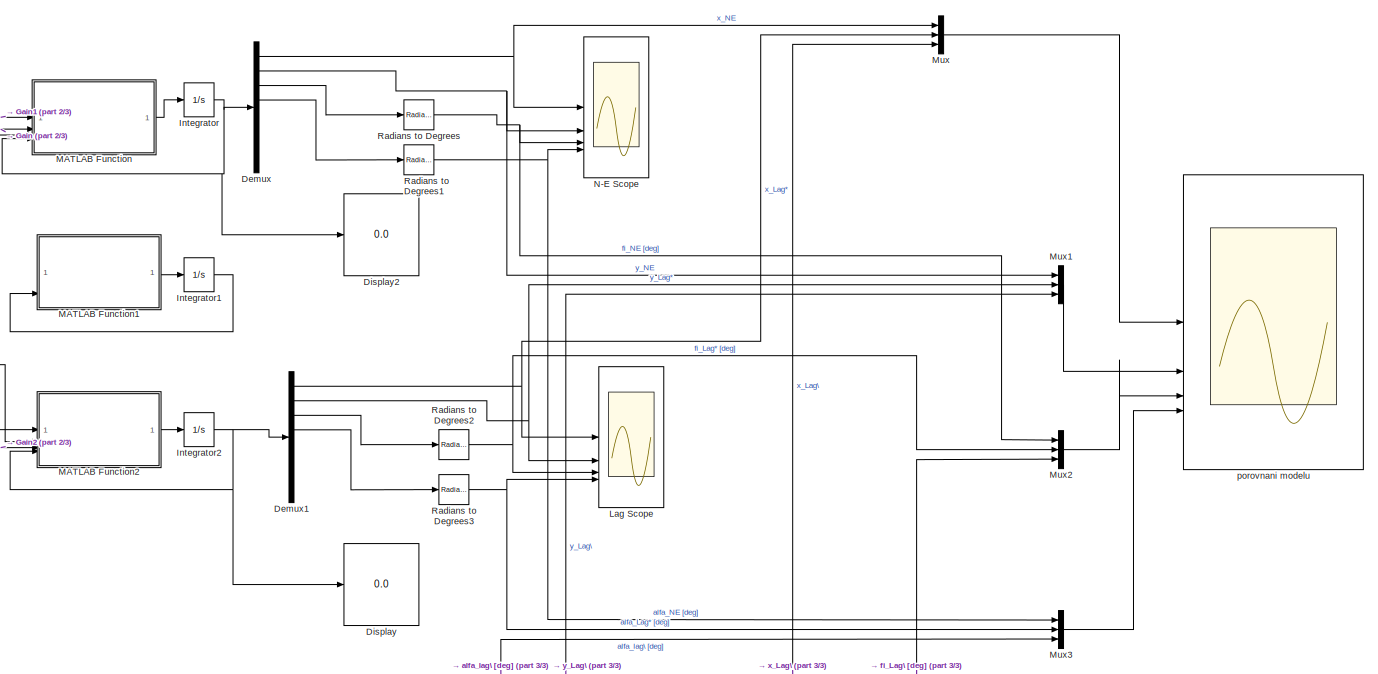
[diagram: root canvas - part 1/3, top right region]
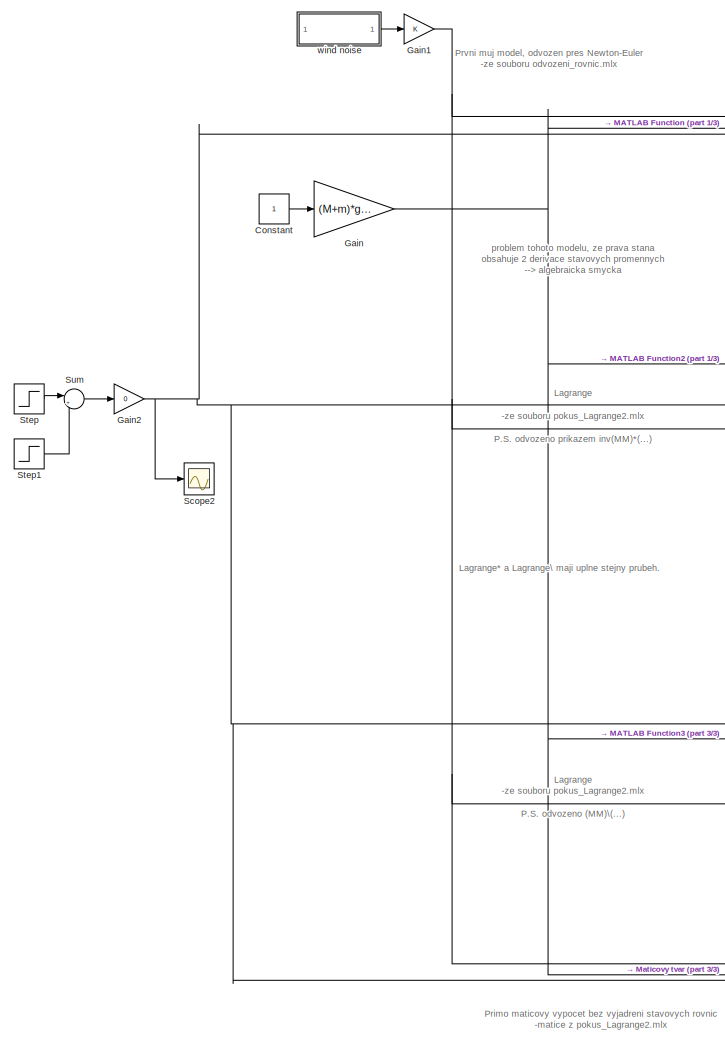
[diagram: root canvas - part 2/3, left side, full height]
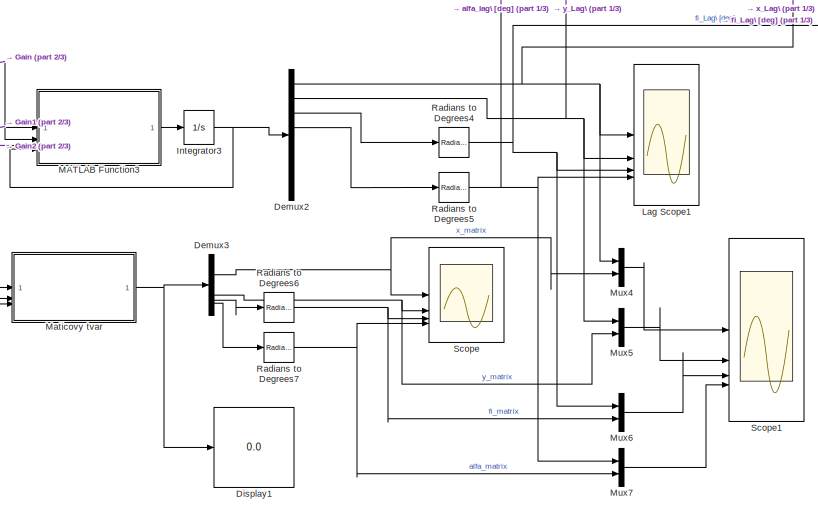
[diagram: root canvas - part 3/3, bottom center region]
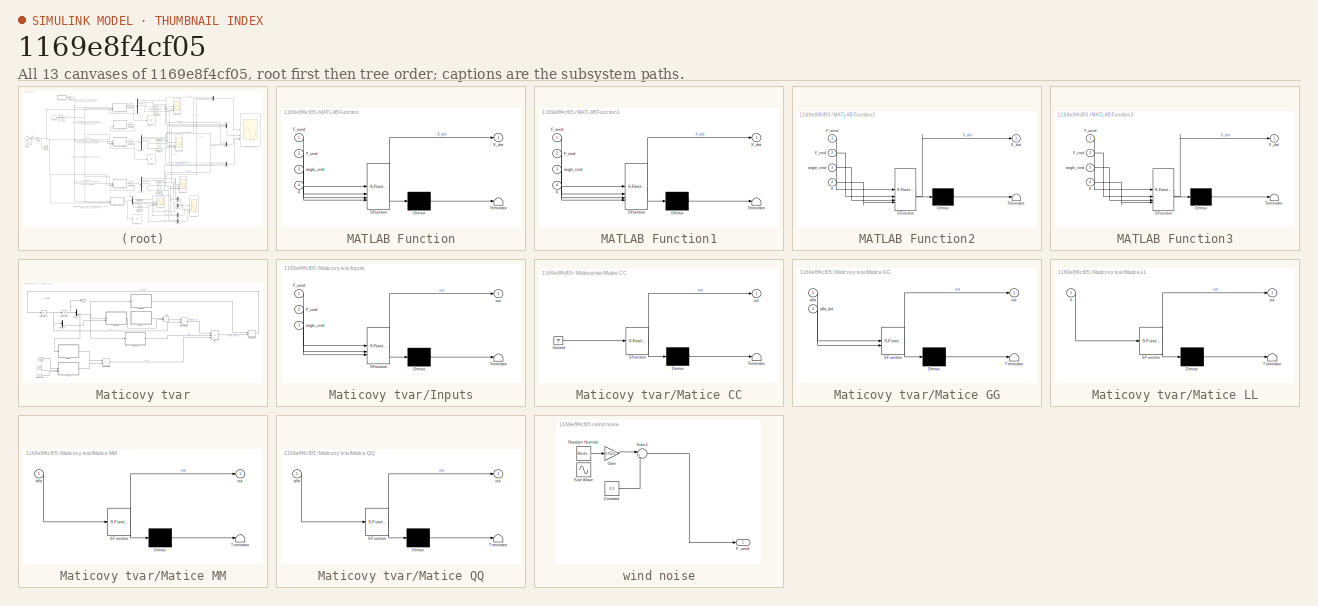
[diagram: thumbnail index - all 13 canvases of the model, root first then tree order]
MODEL slx_1169e8f4cf05
KIND model
CONFIG AbsTol = auto
CONFIG EnableMultiTasking = off
CONFIG FixedStep = 1e-3
CONFIG MaxStep = auto
CONFIG MinStep = auto
CONFIG RelTol = 1e-3
CONFIG SampleTimeConstraint = Unconstrained
CONFIG SolverName = ode4
CONFIG StartTime = 0.0
CONFIG StopTime = 10
BLOCK [Constant] Constant
BLOCK [Demux] Demux
  Outputs = 8
BLOCK [Demux] Demux1
  Outputs = 8
BLOCK [Demux] Demux2
  Outputs = 8
BLOCK [Demux] Demux3
BLOCK [Display] Display
  Decimation = 1
BLOCK [Display] Display1
  Decimation = 1
BLOCK [Display] Display2
  Decimation = 1
BLOCK [Gain] Gain
  Gain = (M+m)*g/1.8
BLOCK [Gain] Gain1
BLOCK [Gain] Gain2
  Gain = 0
BLOCK [Integrator] Integrator
  IgnoreLimit = on
  InitialCondition = [0;0;0;0;0;0;0;0]
  LowerSaturationLimit = [-inf; -inf; -inf; -pi; -inf; -inf; -inf; -inf]
  UpperSaturationLimit = [inf; inf; inf; pi; inf; inf; inf; inf]
BLOCK [Integrator] Integrator1
  Commented = on
  IgnoreLimit = on
  InitialCondition = [0;0;0;0;0;0;0;0]
  LowerSaturationLimit = [-inf; -inf; -inf; -pi; -inf; -inf; -inf; -inf]
  UpperSaturationLimit = [inf; inf; inf; pi; inf; inf; inf; inf]
BLOCK [Integrator] Integrator2
  IgnoreLimit = on
  InitialCondition = [0;0;0;0;0;0;0;0]
  LowerSaturationLimit = [-inf; -inf; -inf; -pi; -inf; -inf; -inf; -inf]
  UpperSaturationLimit = [inf; inf; inf; pi; inf; inf; inf; inf]
BLOCK [Integrator] Integrator3
  IgnoreLimit = on
  InitialCondition = [0;0;0;0;0;0;0;0]
  LowerSaturationLimit = [-inf; -inf; -inf; -pi; -inf; -inf; -inf; -inf]
  UpperSaturationLimit = [inf; inf; inf; pi; inf; inf; inf; inf]
BLOCK [Scope] Lag Scope
  Floating = off
  NumInputPorts = 4
  ScopeSpecificationString = Simulink.scopes.TimeScopeBlockCfg('CurrentConfiguration', extmgr.ConfigurationSet(extmgr.Configuration('Core','General UI',true),extmgr.Configuration('Core','Source UI',true),extmgr.Configuration('Sources','WiredSimulink',true,'DataLoggingVariableName','ScopeData1'),extmgr.Configuration('Visuals','Time Domain',true,'SerializedDisplays',{struct('MinYLimReal','-1.24191','MaxYLimReal','11.1772','YLab...<+3528ch>
BLOCK [Scope] Lag Scope1
  Floating = off
  NumInputPorts = 4
  ScopeSpecificationString = Simulink.scopes.TimeScopeBlockCfg('CurrentConfiguration', extmgr.ConfigurationSet(extmgr.Configuration('Core','General UI',true),extmgr.Configuration('Core','Source UI',true),extmgr.Configuration('Sources','WiredSimulink',true,'DataLoggingVariableName','ScopeData1'),extmgr.Configuration('Visuals','Time Domain',true,'SerializedDisplays',{struct('MinYLimReal','-1.242','MaxYLimReal','11.17804','YLabe...<+3528ch>
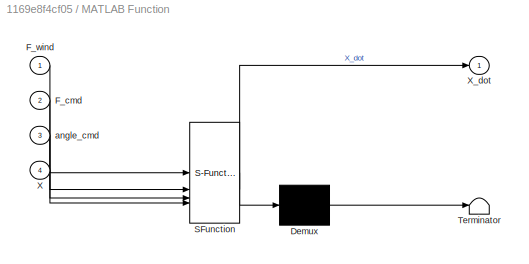
BLOCK [SubSystem] MATLAB Function
  ErrorFcn = Stateflow.Translate.translate
  LibrarySourceBlock = simulink/User-Defined\nFunctions/MATLAB Function
  PermitHierarchicalResolution = ExplicitOnly
  SFBlockType = MATLAB Function
  TreatAsAtomicUnit = on
BLOCK [Demux] MATLAB Function/ Demux 
  Outputs = 1
BLOCK [S-Function] MATLAB Function/ SFunction 
  EnableBusSupport = on
  FunctionName = sf_sfun
  Parameters = Ikv,Ip,L,M,d,g,k,kp,m
  PortCounts = [4 2]
  SFcnIsStateOwnerBlock = off
  SFunctionDeploymentMode = off
  Tag = Stateflow S-Function 2
BLOCK [Terminator] MATLAB Function/ Terminator 
BLOCK [Inport] MATLAB Function/F_cmd
  Port = 2
BLOCK [Inport] MATLAB Function/F_wind
BLOCK [Inport] MATLAB Function/X
  Port = 4
BLOCK [Outport] MATLAB Function/X_dot
BLOCK [Inport] MATLAB Function/angle_cmd
  Port = 3
BLOCK [SubSystem] MATLAB Function1
  Commented = on
  ErrorFcn = Stateflow.Translate.translate
  LibrarySourceBlock = simulink/User-Defined\nFunctions/MATLAB Function
  PermitHierarchicalResolution = ExplicitOnly
  SFBlockType = MATLAB Function
  TreatAsAtomicUnit = on
BLOCK [Demux] MATLAB Function1/ Demux 
  Outputs = 1
BLOCK [S-Function] MATLAB Function1/ SFunction 
  EnableBusSupport = on
  FunctionName = sf_sfun
  Parameters = Ikv,Ip,L,M,d,g,k,kp,m
  PortCounts = [4 2]
  SFcnIsStateOwnerBlock = off
  SFunctionDeploymentMode = off
  Tag = Stateflow S-Function 1
BLOCK [Terminator] MATLAB Function1/ Terminator 
BLOCK [Inport] MATLAB Function1/F_cmd
  Port = 2
BLOCK [Inport] MATLAB Function1/F_wind
BLOCK [Inport] MATLAB Function1/X
  Port = 4
BLOCK [Outport] MATLAB Function1/X_dot
BLOCK [Inport] MATLAB Function1/angle_cmd
  Port = 3
BLOCK [SubSystem] MATLAB Function2
  ErrorFcn = Stateflow.Translate.translate
  LibrarySourceBlock = simulink/User-Defined\nFunctions/MATLAB Function
  PermitHierarchicalResolution = ExplicitOnly
  SFBlockType = MATLAB Function
  TreatAsAtomicUnit = on
BLOCK [Demux] MATLAB Function2/ Demux 
  Outputs = 1
BLOCK [S-Function] MATLAB Function2/ SFunction 
  EnableBusSupport = on
  FunctionName = sf_sfun
  Parameters = Ikv,Ip,L,M,c_alfa,c_fi,c_x,c_y,d,g,k,kp,m
  PortCounts = [4 2]
  SFcnIsStateOwnerBlock = off
  SFunctionDeploymentMode = off
  Tag = Stateflow S-Function 3
BLOCK [Terminator] MATLAB Function2/ Terminator 
BLOCK [Inport] MATLAB Function2/F_cmd
  Port = 2
BLOCK [Inport] MATLAB Function2/F_wind
BLOCK [Inport] MATLAB Function2/X
  Port = 4
BLOCK [Outport] MATLAB Function2/X_dot
BLOCK [Inport] MATLAB Function2/angle_cmd
  Port = 3
BLOCK [SubSystem] MATLAB Function3
  ErrorFcn = Stateflow.Translate.translate
  LibrarySourceBlock = simulink/User-Defined\nFunctions/MATLAB Function
  PermitHierarchicalResolution = ExplicitOnly
  SFBlockType = MATLAB Function
  TreatAsAtomicUnit = on
BLOCK [Demux] MATLAB Function3/ Demux 
  Outputs = 1
BLOCK [S-Function] MATLAB Function3/ SFunction 
  EnableBusSupport = on
  FunctionName = sf_sfun
  Parameters = Ikv,Ip,L,M,c_alfa,c_fi,c_x,c_y,d,g,k,kp,m
  PortCounts = [4 2]
  SFcnIsStateOwnerBlock = off
  SFunctionDeploymentMode = off
  Tag = Stateflow S-Function 4
BLOCK [Terminator] MATLAB Function3/ Terminator 
BLOCK [Inport] MATLAB Function3/F_cmd
  Port = 2
BLOCK [Inport] MATLAB Function3/F_wind
BLOCK [Inport] MATLAB Function3/X
  Port = 4
BLOCK [Outport] MATLAB Function3/X_dot
BLOCK [Inport] MATLAB Function3/angle_cmd
  Port = 3
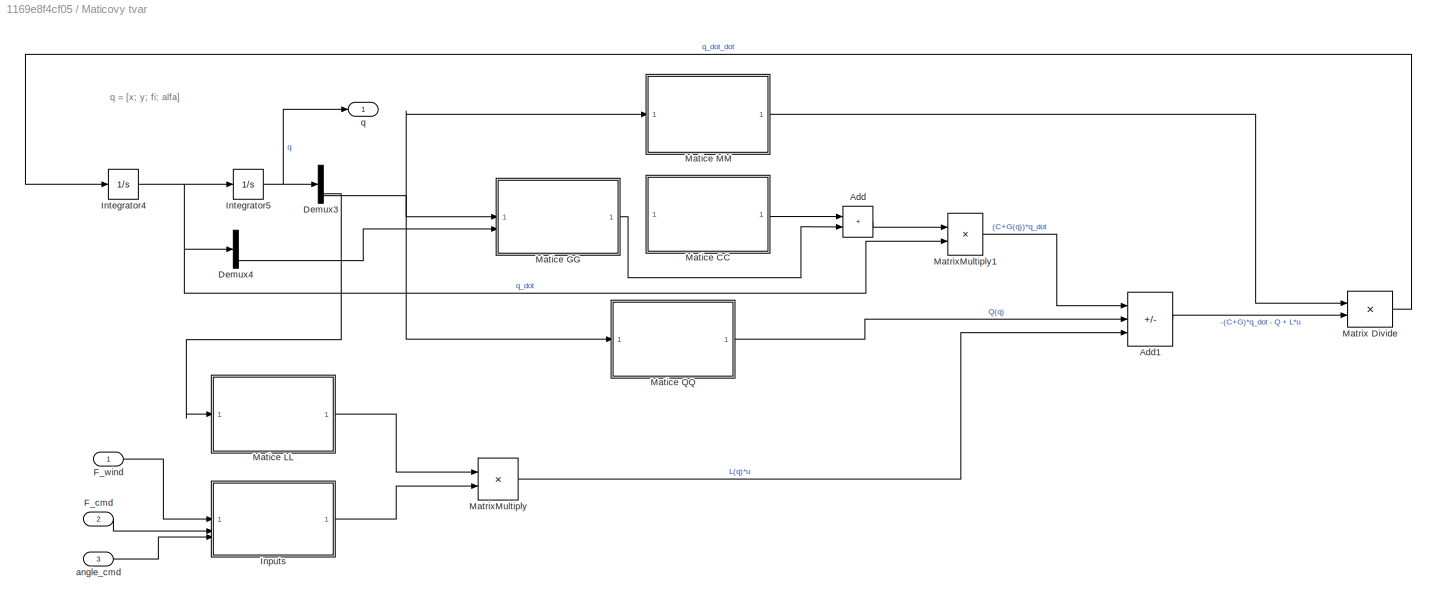
BLOCK [SubSystem] Maticovy tvar
BLOCK [Sum] Maticovy tvar/Add
  IconShape = rectangular
BLOCK [Sum] Maticovy tvar/Add1
  IconShape = rectangular
  Inputs = --+
BLOCK [Demux] Maticovy tvar/Demux3
BLOCK [Demux] Maticovy tvar/Demux4
BLOCK [Inport] Maticovy tvar/F_cmd
  Port = 2
BLOCK [Inport] Maticovy tvar/F_wind
BLOCK [SubSystem] Maticovy tvar/Inputs
  ErrorFcn = Stateflow.Translate.translate
  LibrarySourceBlock = simulink/User-Defined\nFunctions/MATLAB Function
  PermitHierarchicalResolution = ExplicitOnly
  SFBlockType = MATLAB Function
  TreatAsAtomicUnit = on
BLOCK [Demux] Maticovy tvar/Inputs/ Demux 
  Outputs = 1
BLOCK [S-Function] Maticovy tvar/Inputs/ SFunction 
  EnableBusSupport = on
  FunctionName = sf_sfun
  Parameters = L
  PortCounts = [3 2]
  SFcnIsStateOwnerBlock = off
  SFunctionDeploymentMode = off
  Tag = Stateflow S-Function 10
BLOCK [Terminator] Maticovy tvar/Inputs/ Terminator 
BLOCK [Inport] Maticovy tvar/Inputs/F_cmd
  Port = 2
BLOCK [Inport] Maticovy tvar/Inputs/F_wind
BLOCK [Inport] Maticovy tvar/Inputs/angle_cmd
  Port = 3
BLOCK [Outport] Maticovy tvar/Inputs/out
BLOCK [Integrator] Maticovy tvar/Integrator4
  InitialCondition = [0;0;0;0]
BLOCK [Integrator] Maticovy tvar/Integrator5
  InitialCondition = [0;0;0;0]
BLOCK [SubSystem] Maticovy tvar/Matice CC
  ErrorFcn = Stateflow.Translate.translate
  LibrarySourceBlock = simulink/User-Defined\nFunctions/MATLAB Function
  PermitHierarchicalResolution = ExplicitOnly
  SFBlockType = MATLAB Function
  TreatAsAtomicUnit = on
BLOCK [Demux] Maticovy tvar/Matice CC/ Demux 
  Outputs = 1
BLOCK [Ground] Maticovy tvar/Matice CC/ Ground 
BLOCK [S-Function] Maticovy tvar/Matice CC/ SFunction 
  EnableBusSupport = on
  FunctionName = sf_sfun
  Parameters = c_alfa,c_fi,c_x,c_y
  PortCounts = [1 2]
  SFcnIsStateOwnerBlock = off
  SFunctionDeploymentMode = off
  Tag = Stateflow S-Function 6
BLOCK [Terminator] Maticovy tvar/Matice CC/ Terminator 
BLOCK [Outport] Maticovy tvar/Matice CC/out
BLOCK [SubSystem] Maticovy tvar/Matice GG
  ErrorFcn = Stateflow.Translate.translate
  LibrarySourceBlock = simulink/User-Defined\nFunctions/MATLAB Function
  PermitHierarchicalResolution = ExplicitOnly
  SFBlockType = MATLAB Function
  TreatAsAtomicUnit = on
BLOCK [Demux] Maticovy tvar/Matice GG/ Demux 
  Outputs = 1
BLOCK [S-Function] Maticovy tvar/Matice GG/ SFunction 
  EnableBusSupport = on
  FunctionName = sf_sfun
  Parameters = d,m
  PortCounts = [2 2]
  SFcnIsStateOwnerBlock = off
  SFunctionDeploymentMode = off
  Tag = Stateflow S-Function 7
BLOCK [Terminator] Maticovy tvar/Matice GG/ Terminator 
BLOCK [Inport] Maticovy tvar/Matice GG/alfa
BLOCK [Inport] Maticovy tvar/Matice GG/alfa_dot
  Port = 2
BLOCK [Outport] Maticovy tvar/Matice GG/out
BLOCK [SubSystem] Maticovy tvar/Matice LL
  ErrorFcn = Stateflow.Translate.translate
  LibrarySourceBlock = simulink/User-Defined\nFunctions/MATLAB Function
  PermitHierarchicalResolution = ExplicitOnly
  SFBlockType = MATLAB Function
  TreatAsAtomicUnit = on
BLOCK [Demux] Maticovy tvar/Matice LL/ Demux 
  Outputs = 1
BLOCK [S-Function] Maticovy tvar/Matice LL/ SFunction 
  EnableBusSupport = on
  FunctionName = sf_sfun
  PortCounts = [1 2]
  SFcnIsStateOwnerBlock = off
  SFunctionDeploymentMode = off
  Tag = Stateflow S-Function 9
BLOCK [Terminator] Maticovy tvar/Matice LL/ Terminator 
BLOCK [Inport] Maticovy tvar/Matice LL/fi
BLOCK [Outport] Maticovy tvar/Matice LL/out
BLOCK [SubSystem] Maticovy tvar/Matice MM
  ErrorFcn = Stateflow.Translate.translate
  LibrarySourceBlock = simulink/User-Defined\nFunctions/MATLAB Function
  PermitHierarchicalResolution = ExplicitOnly
  SFBlockType = MATLAB Function
  TreatAsAtomicUnit = on
BLOCK [Demux] Maticovy tvar/Matice MM/ Demux 
  Outputs = 1
BLOCK [S-Function] Maticovy tvar/Matice MM/ SFunction 
  EnableBusSupport = on
  FunctionName = sf_sfun
  Parameters = Ikv,M,d,m
  PortCounts = [1 2]
  SFcnIsStateOwnerBlock = off
  SFunctionDeploymentMode = off
  Tag = Stateflow S-Function 5
BLOCK [Terminator] Maticovy tvar/Matice MM/ Terminator 
BLOCK [Inport] Maticovy tvar/Matice MM/alfa
BLOCK [Outport] Maticovy tvar/Matice MM/out
BLOCK [SubSystem] Maticovy tvar/Matice QQ
  ErrorFcn = Stateflow.Translate.translate
  LibrarySourceBlock = simulink/User-Defined\nFunctions/MATLAB Function
  PermitHierarchicalResolution = ExplicitOnly
  SFBlockType = MATLAB Function
  TreatAsAtomicUnit = on
BLOCK [Demux] Maticovy tvar/Matice QQ/ Demux 
  Outputs = 1
BLOCK [S-Function] Maticovy tvar/Matice QQ/ SFunction 
  EnableBusSupport = on
  FunctionName = sf_sfun
  Parameters = M,d,g,m
  PortCounts = [1 2]
  SFcnIsStateOwnerBlock = off
  SFunctionDeploymentMode = off
  Tag = Stateflow S-Function 8
BLOCK [Terminator] Maticovy tvar/Matice QQ/ Terminator 
BLOCK [Inport] Maticovy tvar/Matice QQ/alfa
BLOCK [Outport] Maticovy tvar/Matice QQ/out
BLOCK [Product] Maticovy tvar/Matrix Divide
  Inputs = /*
  Multiplication = Matrix(*)
BLOCK [Product] Maticovy tvar/MatrixMultiply
  Multiplication = Matrix(*)
BLOCK [Product] Maticovy tvar/MatrixMultiply1
  Multiplication = Matrix(*)
BLOCK [Inport] Maticovy tvar/angle_cmd
  Port = 3
BLOCK [Outport] Maticovy tvar/q
BLOCK [Mux] Mux
  DisplayOption = bar
  Inputs = 3
BLOCK [Mux] Mux1
  DisplayOption = bar
  Inputs = 3
BLOCK [Mux] Mux2
  DisplayOption = bar
  Inputs = 3
BLOCK [Mux] Mux3
  DisplayOption = bar
  Inputs = 3
BLOCK [Mux] Mux4
  DisplayOption = bar
  Inputs = 2
BLOCK [Mux] Mux5
  DisplayOption = bar
  Inputs = 2
BLOCK [Mux] Mux6
  DisplayOption = bar
  Inputs = 2
BLOCK [Mux] Mux7
  DisplayOption = bar
  Inputs = 2
BLOCK [Scope] N-E Scope
  Floating = off
  NumInputPorts = 4
  ScopeSpecificationString = Simulink.scopes.TimeScopeBlockCfg('CurrentConfiguration', extmgr.ConfigurationSet(extmgr.Configuration('Core','General UI',true),extmgr.Configuration('Core','Source UI',true),extmgr.Configuration('Sources','WiredSimulink',true),extmgr.Configuration('Visuals','Time Domain',true,'SerializedDisplays',{struct('MinYLimReal','-1.26666','MaxYLimReal','11.39995','YLabelReal','','MinYLimMag','0.00000','Max...<+3460ch>
BLOCK [Reference] Radians to Degrees  REF=simulink_extras/Transformations/Radians
to Degrees
  SourceBlock = simulink_extras/Transformations/Radians\nto Degrees
  SourceType = RadiansToDegrees
BLOCK [Reference] Radians to Degrees1  REF=simulink_extras/Transformations/Radians
to Degrees
  SourceBlock = simulink_extras/Transformations/Radians\nto Degrees
  SourceType = RadiansToDegrees
BLOCK [Reference] Radians to Degrees2  REF=simulink_extras/Transformations/Radians
to Degrees
  SourceBlock = simulink_extras/Transformations/Radians\nto Degrees
  SourceType = RadiansToDegrees
BLOCK [Reference] Radians to Degrees3  REF=simulink_extras/Transformations/Radians
to Degrees
  SourceBlock = simulink_extras/Transformations/Radians\nto Degrees
  SourceType = RadiansToDegrees
BLOCK [Reference] Radians to Degrees4  REF=simulink_extras/Transformations/Radians
to Degrees
  SourceBlock = simulink_extras/Transformations/Radians\nto Degrees
  SourceType = RadiansToDegrees
BLOCK [Reference] Radians to Degrees5  REF=simulink_extras/Transformations/Radians
to Degrees
  SourceBlock = simulink_extras/Transformations/Radians\nto Degrees
  SourceType = RadiansToDegrees
BLOCK [Reference] Radians to Degrees6  REF=simulink_extras/Transformations/Radians
to Degrees
  SourceBlock = simulink_extras/Transformations/Radians\nto Degrees
  SourceType = RadiansToDegrees
BLOCK [Reference] Radians to Degrees7  REF=simulink_extras/Transformations/Radians
to Degrees
  SourceBlock = simulink_extras/Transformations/Radians\nto Degrees
  SourceType = RadiansToDegrees
BLOCK [Scope] Scope
  Floating = off
  NumInputPorts = 4
  ScopeSpecificationString = Simulink.scopes.TimeScopeBlockCfg('CurrentConfiguration', extmgr.ConfigurationSet(extmgr.Configuration('Core','General UI',true),extmgr.Configuration('Core','Source UI',true),extmgr.Configuration('Sources','WiredSimulink',true,'DataLoggingVariableName','ScopeData1'),extmgr.Configuration('Visuals','Time Domain',true,'SerializedDisplays',{struct('MinYLimReal','-213.31952','MaxYLimReal','23.70603','Y...<+3525ch>
BLOCK [Scope] Scope1
  Floating = off
  NumInputPorts = 4
  ScopeSpecificationString = Simulink.scopes.TimeScopeBlockCfg('CurrentConfiguration', extmgr.ConfigurationSet(extmgr.Configuration('Core','General UI',true),extmgr.Configuration('Core','Source UI',true),extmgr.Configuration('Sources','WiredSimulink',true,'DataLoggingVariableName','ScopeData2'),extmgr.Configuration('Visuals','Time Domain',true,'SerializedDisplays',{struct('MinYLimReal','-1.24192','MaxYLimReal','11.17729','YLa...<+3560ch>
BLOCK [Scope] Scope2
  Floating = off
  NumInputPorts = 1
  ScopeSpecificationString = Simulink.scopes.TimeScopeBlockCfg('CurrentConfiguration', extmgr.ConfigurationSet(extmgr.Configuration('Core','General UI',true),extmgr.Configuration('Core','Source UI',true),extmgr.Configuration('Sources','WiredSimulink',true,'DataLoggingVariableName','ScopeData1'),extmgr.Configuration('Visuals','Time Domain',true,'SerializedDisplays',{struct('MinYLimReal','-1.00000','MaxYLimReal','1.00000','YLab...<+1419ch>
BLOCK [Step] Step
  SampleTime = 0
BLOCK [Step] Step1
  After = 0
  Before = 1
  SampleTime = 0
  Time = 2
BLOCK [Sum] Sum
  Inputs = |++
BLOCK [Scope] porovnani modelu
  Floating = off
  NumInputPorts = 4
  ScopeSpecificationString = Simulink.scopes.TimeScopeBlockCfg('CurrentConfiguration', extmgr.ConfigurationSet(extmgr.Configuration('Core','General UI',true),extmgr.Configuration('Core','Source UI',true),extmgr.Configuration('Sources','WiredSimulink',true,'DataLoggingVariableName','ScopeData2'),extmgr.Configuration('Visuals','Time Domain',true,'SerializedDisplays',{struct('MinYLimReal','-1.26416','MaxYLimReal','11.37747','YLa...<+3904ch>
BLOCK [SubSystem] wind noise
BLOCK [Constant] wind noise/Constant
  Value = 0.1
BLOCK [Outport] wind noise/F_wind
BLOCK [Gain] wind noise/Gain
  Gain = 0.05/3
BLOCK [RandomNumber] wind noise/Random Number
  SampleTime = 0.1
BLOCK [Sin] wind noise/Sine Wave
  Amplitude = 0.1
  Frequency = 0.5
  SampleTime = 0
BLOCK [Sum] wind noise/Sum1
  Inputs = |++
ANNOTATION (root): Lagrange -ze souboru pokus_Lagrange2.mlx P.S. odvozeno (MM)\(...)
ANNOTATION (root): Lagrange -ze souboru pokus_Lagrange2.mlx P.S. odvozeno prikazem inv(MM)*(...)
ANNOTATION (root): Lagrange* a Lagrange\ maji uplne stejny prubeh.
ANNOTATION (root): Primo maticovy vypocet bez vyjadreni stavovych rovnic -matice z pokus_Lagrange2.mlx
ANNOTATION (root): Prvni muj model, odvozen pres Newton-Euler -ze souboru odvozeni_rovnic.mlx
ANNOTATION (root): problem tohoto modelu, ze prava stana obsahuje 2 derivace stavovych promennych --> algebraicka smycka
ANNOTATION Maticovy tvar: q = [x; y; fi; alfa]
LINE Constant:1 -> Gain:1
NET Demux1:1 -> Lag Scope:1, Mux:2
NET Demux1:2 -> Lag Scope:2, Mux1:2
LINE Demux1:3 -> Radians to Degrees2:1
LINE Demux1:4 -> Radians to Degrees3:1
NET Demux2:1 -> Lag Scope1:1, Mux4:1, Mux:3
NET Demux2:2 -> Lag Scope1:2, Mux1:3, Mux5:1
LINE Demux2:3 -> Radians to Degrees4:1
LINE Demux2:4 -> Radians to Degrees5:1
NET Demux3:1 -> Mux4:2, Scope:1
NET Demux3:2 -> Mux5:2, Scope:2
LINE Demux3:3 -> Radians to Degrees6:1
LINE Demux3:4 -> Radians to Degrees7:1
NET Demux:1 -> Mux:1, N-E Scope:1
NET Demux:2 -> Mux1:1, N-E Scope:2
LINE Demux:3 -> Radians to Degrees:1
LINE Demux:4 -> Radians to Degrees1:1
NET Gain1:1 -> MATLAB Function2:1, MATLAB Function3:1, MATLAB Function:1, Maticovy tvar:1
NET Gain2:1 -> MATLAB Function2:3, MATLAB Function3:3, MATLAB Function:3, Maticovy tvar:3, Scope2:1
NET Gain:1 -> MATLAB Function2:2, MATLAB Function3:2, MATLAB Function:2, Maticovy tvar:2
LINE Integrator1:1 -> MATLAB Function1:4
NET Integrator2:1 -> Demux1:1, Display:1, MATLAB Function2:4
NET Integrator3:1 -> Demux2:1, MATLAB Function3:4
NET Integrator:1 -> Demux:1, Display2:1, MATLAB Function:4
LINE MATLAB Function1:1 -> Integrator1:1
LINE MATLAB Function2:1 -> Integrator2:1
LINE MATLAB Function3:1 -> Integrator3:1
LINE MATLAB Function:1 -> Integrator:1
LINE Maticovy tvar/Add1:1 -> Maticovy tvar/Matrix Divide:2
LINE Maticovy tvar/Add:1 -> Maticovy tvar/MatrixMultiply1:1
LINE Maticovy tvar/Demux3:3 -> Maticovy tvar/Matice LL:1
NET Maticovy tvar/Demux3:4 -> Maticovy tvar/Matice GG:1, Maticovy tvar/Matice MM:1, Maticovy tvar/Matice QQ:1
LINE Maticovy tvar/Demux4:4 -> Maticovy tvar/Matice GG:2
LINE Maticovy tvar/F_cmd:1 -> Maticovy tvar/Inputs:2
LINE Maticovy tvar/F_wind:1 -> Maticovy tvar/Inputs:1
LINE Maticovy tvar/Inputs:1 -> Maticovy tvar/MatrixMultiply:2
NET Maticovy tvar/Integrator4:1 -> Maticovy tvar/Demux4:1, Maticovy tvar/Integrator5:1, Maticovy tvar/MatrixMultiply1:2
NET Maticovy tvar/Integrator5:1 -> Maticovy tvar/Demux3:1, Maticovy tvar/q:1
LINE Maticovy tvar/Matice CC:1 -> Maticovy tvar/Add:1
LINE Maticovy tvar/Matice GG:1 -> Maticovy tvar/Add:2
LINE Maticovy tvar/Matice LL:1 -> Maticovy tvar/MatrixMultiply:1
LINE Maticovy tvar/Matice MM:1 -> Maticovy tvar/Matrix Divide:1
LINE Maticovy tvar/Matice QQ:1 -> Maticovy tvar/Add1:2
LINE Maticovy tvar/Matrix Divide:1 -> Maticovy tvar/Integrator4:1
LINE Maticovy tvar/MatrixMultiply1:1 -> Maticovy tvar/Add1:1
LINE Maticovy tvar/MatrixMultiply:1 -> Maticovy tvar/Add1:3
LINE Maticovy tvar/angle_cmd:1 -> Maticovy tvar/Inputs:3
NET Maticovy tvar:1 -> Demux3:1, Display1:1
LINE Mux1:1 -> porovnani modelu:2
LINE Mux2:1 -> porovnani modelu:3
LINE Mux3:1 -> porovnani modelu:4
LINE Mux4:1 -> Scope1:1
LINE Mux5:1 -> Scope1:2
LINE Mux6:1 -> Scope1:3
LINE Mux7:1 -> Scope1:4
LINE Mux:1 -> porovnani modelu:1
NET Radians to Degrees1:1 -> Mux3:1, N-E Scope:4
NET Radians to Degrees2:1 -> Lag Scope:3, Mux2:2
NET Radians to Degrees3:1 -> Lag Scope:4, Mux3:2
NET Radians to Degrees4:1 -> Lag Scope1:3, Mux2:3, Mux6:1
NET Radians to Degrees5:1 -> Lag Scope1:4, Mux3:3, Mux7:1
NET Radians to Degrees6:1 -> Mux6:2, Scope:3
NET Radians to Degrees7:1 -> Mux7:2, Scope:4
NET Radians to Degrees:1 -> Mux2:1, N-E Scope:3
LINE Step1:1 -> Sum:2
LINE Step:1 -> Sum:1
LINE Sum:1 -> Gain2:1
LINE wind noise/Constant:1 -> wind noise/Sum1:2
LINE wind noise/Gain:1 -> wind noise/Sum1:1
LINE wind noise/Random Number:1 -> wind noise/Gain:1
LINE wind noise/Sum1:1 -> wind noise/F_wind:1
LINE wind noise:1 -> Gain1:1
note: NET lines group one-source signal fan-out (src -> all destinations, sorted); 1:1 wires keep LINE
CHART Maticovy tvar/Matice MM states=1 transitions=1
  STATE_LABEL 'eML_blk_kernel()'
  STATE_LABEL 'SCRIPT:\nfunction out = fcn(d, M, m, alfa, Ikv)\n% matice MM\nout = [ (M+m)   0   0   m*d*cos(alfa);\n       0    (M+m) 0   m*d*sin(alfa);\n       0      0   Ikv        0\n m*d*cos(alfa) m*d*sin(alfa) 0 m*d^2];'
CHART Maticovy tvar/Matice CC states=1 transitions=1
  STATE_LABEL 'eML_blk_kernel()'
  STATE_LABEL 'SCRIPT:\nfunction out = fcn(c_x, c_y, c_fi, c_alfa)\n% matice CC\nout = [c_x 0 0 0; 0 c_y 0 0; 0 0 c_fi 0; 0 0 0 c_alfa];\n'
CHART Maticovy tvar/Matice GG states=1 transitions=1
  STATE_LABEL 'eML_blk_kernel()'
  STATE_LABEL 'SCRIPT:\nfunction out = fcn( d, m, alfa, alfa_dot)\n% matice GG\nout = [0 0 0 -m*d*sin(alfa)*alfa_dot;\n     0 0 0 m*d*cos(alfa)*alfa_dot;\n     0 0 0 0;\n     0 0 0 0];\n'
CHART Maticovy tvar/Matice QQ states=1 transitions=1
  STATE_LABEL 'eML_blk_kernel()'
  STATE_LABEL 'SCRIPT:\nfunction out = fcn(g, d, M, m, alfa)\n% matice QQ\nout = [0; (M+m)*g; 0; m*g*d*sin(alfa)];'
CHART Maticovy tvar/Matice LL states=1 transitions=1
  STATE_LABEL 'eML_blk_kernel()'
  STATE_LABEL 'SCRIPT:\nfunction out = fcn(fi)\n%matice LL\nout = [-sin(fi) 0 1; cos(fi) 0 0; 0 1 0; 0 0 0];\n'
CHART Maticovy tvar/Inputs states=1 transitions=1
  STATE_LABEL 'eML_blk_kernel()'
  STATE_LABEL 'SCRIPT:\nfunction out = fcn(L, F_wind, F_cmd, angle_cmd)\nF1 = F_cmd + angle_cmd; % Celková tažná síla na 1. motoru\nF2 = F_cmd - angle_cmd; % Celková tažná síla na 2. motoru\nout = [F1+F2; (F1-F2)*L; F_wind];\n'
CHART MATLAB Function1 states=1 transitions=1
  STATE_LABEL 'eML_blk_kernel()'
  STATE_LABEL 'SCRIPT:\nfunction X_dot = fcn(F_wind, F_cmd, angle_cmd, X, g, L, d, M, m, Ikv, Ip, k, kp)\n% [x1, x2, x3, x4, x5, x6, x7, x8] = [x, y, fi, alfa, x_dot, y_dot, fi_dot, alfa_dot]\nx1 = X(1);\nx2 = X(2);\nx3 = X(3);\nx4 = X(4);\nx5 = X(5);\nx6 = X(6);\nx7 = X(7);\nx8 = X(8);\n\nF1 = F_cmd + angle_cmd; % Celková tažná síla na 1. motoru\nF2 = F_cmd - angle_cmd; % Celková tažná síla na 2. motoru\n% F1 a F2 lze také v...<+723ch>'
CHART MATLAB Function states=1 transitions=1
  STATE_LABEL 'eML_blk_kernel()'
  STATE_LABEL 'SCRIPT:\nfunction X_dot = fcn(F_wind, F_cmd, angle_cmd, X, g, L, d, M, m, Ikv, Ip, k, kp)\n% [x1, x2, x3, x4, x5, x6, x7, x8] = [x, y, fi, alfa, x_dot, y_dot, fi_dot, alfa_dot]\nx1 = X(1);\nx2 = X(2);\nx3 = X(3);\nx4 = X(4);\nx5 = X(5);\nx6 = X(6);\nx7 = X(7);\nx8 = X(8);\n\nF1 = F_cmd + angle_cmd; % Celková tažná síla na 1. motoru\nF2 = F_cmd - angle_cmd; % Celková tažná síla na 2. motoru\n% F1 a F2 lze také v...<+1440ch>'
CHART MATLAB Function2 states=1 transitions=1
  STATE_LABEL 'eML_blk_kernel()'
  STATE_LABEL 'SCRIPT:\nfunction X_dot = fcn(F_wind, F_cmd, angle_cmd, X, g, L, d, M, m, Ikv, Ip, k, kp, c_x, c_y, c_fi, c_alfa)\n% [x1, x2, x3, x4, x5, x6, x7, x8] = [x, y, fi, alfa, x_dot, y_dot, fi_dot, alfa_dot]\nx1 = X(1);\nx2 = X(2);\nx3 = X(3);\nx4 = X(4);\nx5 = X(5);\nx6 = X(6);\nx7 = X(7);\nx8 = X(8);\n\nF1 = F_cmd + angle_cmd; % Celková tažná síla na 1. motoru\nF2 = F_cmd - angle_cmd; % Celková tažná síla na 2. mot...<+2844ch>'
CHART MATLAB Function3 states=1 transitions=1
  STATE_LABEL 'eML_blk_kernel()'
  STATE_LABEL 'SCRIPT:\nfunction X_dot = fcn(F_wind, F_cmd, angle_cmd, X, g, L, d, M, m, Ikv, Ip, k, kp, c_x, c_y, c_fi, c_alfa)\n% [x1, x2, x3, x4, x5, x6, x7, x8] = [x, y, fi, alfa, x_dot, y_dot, fi_dot, alfa_dot]\nx1 = X(1);\nx2 = X(2);\nx3 = X(3);\nx4 = X(4);\nx5 = X(5);\nx6 = X(6);\nx7 = X(7);\nx8 = X(8);\n\nF1 = F_cmd + angle_cmd; % Celková tažná síla na 1. motoru\nF2 = F_cmd - angle_cmd; % Celková tažná síla na 2. mot...<+1761ch>'
CHART  states=0 transitions=0
CHART  states=0 transitions=0
CHART  states=0 transitions=0
CHART  states=0 transitions=0
CHART  states=0 transitions=0
CHART  states=0 transitions=0
CHART  states=0 transitions=0
CHART  states=0 transitions=0
CHART  states=0 transitions=0
CHART  states=0 transitions=0
